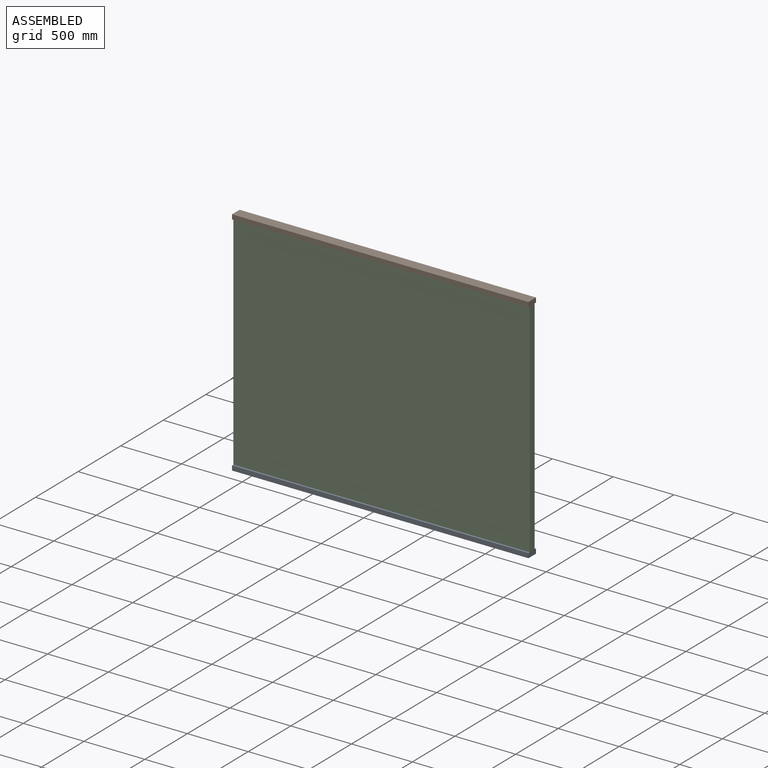
[diagram: assembled view]
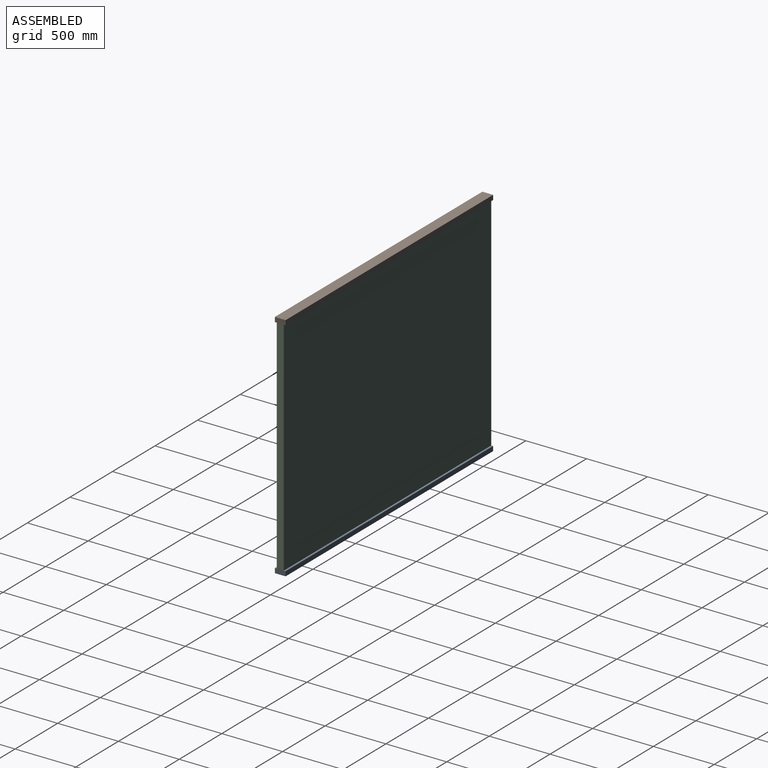
[diagram: assembled view, second angle]
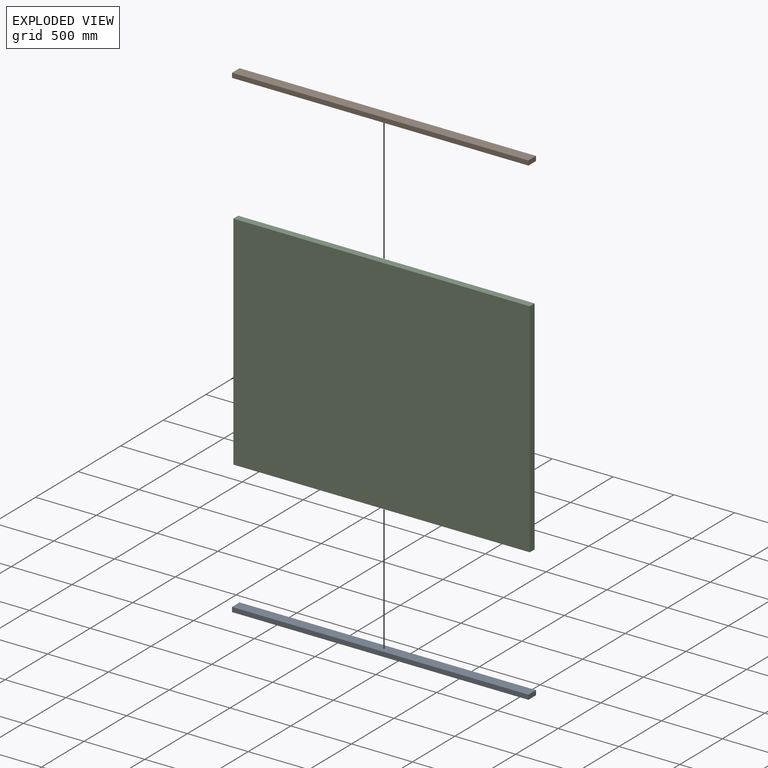
[diagram: exploded view]
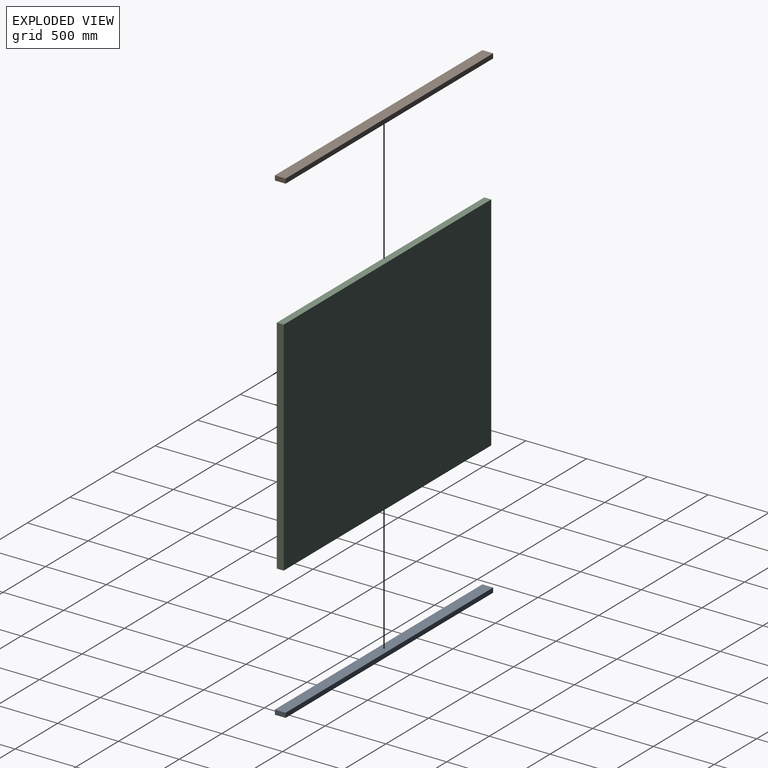
[diagram: exploded view, second angle]
ASSEMBLY  parts=3 mates=2
PART A: 6 faces, bbox 2438.4x88.9x38.1 mm
  f0: plane 88.9x38.1mm, normal (1,0,0), area 3387.1mm2, adj f1,f3,f4,f5
  f1: plane 2438.4x38.1mm, normal (0,1,0), area 92903mm2, adj f0,f2,f4,f5
  f2: plane 88.9x38.1mm, normal (-1,0,0), area 3387.1mm2, adj f1,f3,f4,f5
  f3: plane 2438.4x38.1mm, normal (0,-1,0), area 92903mm2, adj f0,f2,f4,f5
  f4: plane 2438.4x88.9mm, normal (0,0,1), area 216773.8mm2, adj f0,f1,f2,f3
  f5: plane 2438.4x88.9mm, normal (0,0,-1), area 216773.8mm2, adj f0,f1,f2,f3
PART B: same geometry as A
PART C: 6 faces, bbox 2438.4x57.2x1828.8 mm
  f0: plane 2438.4x57.15mm, normal (0,0,1), area 139354.6mm2, adj f1,f3,f4,f5
  f1: plane 1828.8x57.15mm, normal (-1,0,0), area 104515.9mm2, adj f0,f2,f4,f5
  f2: plane 2438.4x57.15mm, normal (0,0,-1), area 139354.6mm2, adj f1,f3,f4,f5
  f3: plane 1828.8x57.15mm, normal (1,0,0), area 104515.9mm2, adj f0,f2,f4,f5
  f4: plane 2438.4x1828.8mm, normal (0,-1,0), area 4459345.9mm2, adj f0,f1,f2,f3
  f5: plane 2438.4x1828.8mm, normal (0,1,0), area 4459345.9mm2, adj f0,f1,f2,f3
PLACE A t=(-88.72,222.27,-542.27)mm
PLACE B rot(axis=(0,1,0),180deg) t=(-88.72,222.27,1362.73)mm
PLACE C t=(-88.72,250.84,410.23)mm
MATE fastened A.f4 <-> C.f2  axis (0,0,1) through (-88.72,222.27,-504.17)mm
MATE fastened B.f4 <-> C.f0  axis (0,0,-1) through (-88.72,222.27,1324.63)mm
